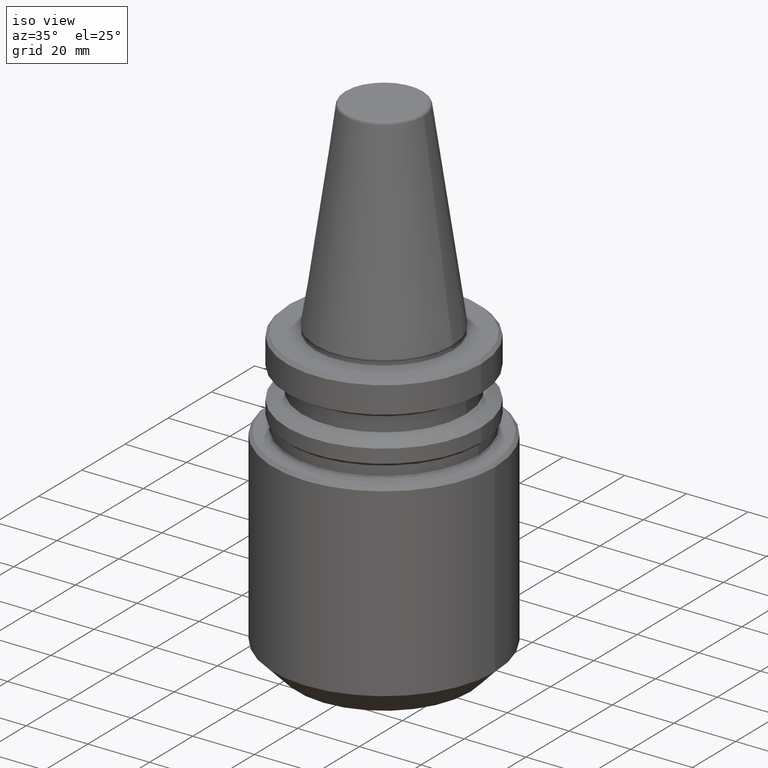
[diagram: clean part render]
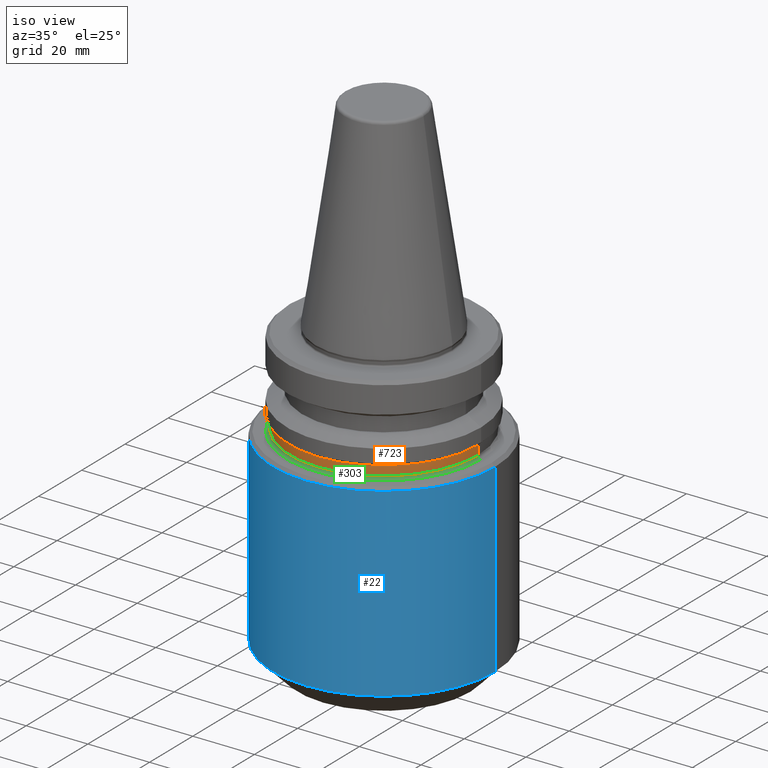
[diagram: same view with three faces highlighted in distinct colors, each labeled with its STEP entity id]
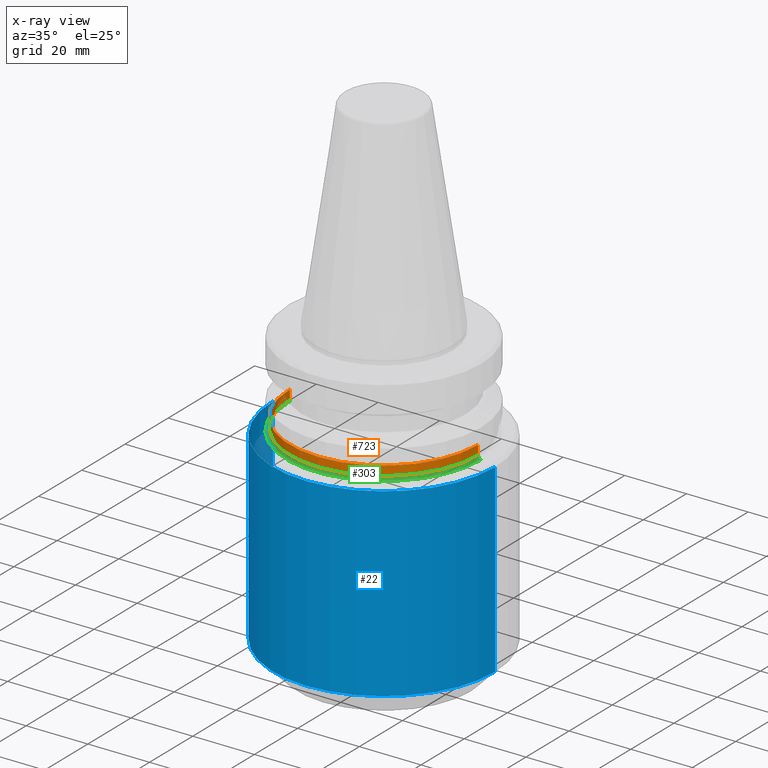
[diagram: x-ray of the same camera — body ghosted, the three highlighted faces saturated]
A machine part, iso view with three faces highlighted in distinct colors.
The next image is the same camera in x-ray (body ghosted, the three faces saturated) — at least one of them is partly hidden behind the body in this view.
Their STEP definitions:

[orange] entity #723 — the highlighted cylindrical surface (partial cylindrical patch) has radius 30.5 mm, axis along (-0, -0, 1).
#21 = CIRCLE ( 'NONE', #330, 30.50000000000024900 ) ;
#33 = CIRCLE ( 'NONE', #342, 30.50000000000019200 ) ;
#83 = DIRECTION ( 'NONE',  ( 1.000000000000000000, 0.0000000000000000000, 0.0000000000000000000 ) ) ;
#89 = CARTESIAN_POINT ( 'NONE',  ( 30.50000000000024900, 0.0000000000000000000, -30.00000000000023400 ) ) ;
#92 = EDGE_CURVE ( 'NONE', #1136, #1078, #33, .T. ) ;
#93 = DIRECTION ( 'NONE',  ( -0.0000000000000000000, -0.0000000000000000000, 1.000000000000000000 ) ) ;
#213 = CARTESIAN_POINT ( 'NONE',  ( -30.50000000000022000, 3.735172737399454400E-015, 121.7509167751276400 ) ) ;
#259 = CARTESIAN_POINT ( 'NONE',  ( 0.0000000000000000000, 0.0000000000000000000, -26.99999999999978700 ) ) ;
#271 = CARTESIAN_POINT ( 'NONE',  ( 0.0000000000000000000, 0.0000000000000000000, 121.7509167751276400 ) ) ;
#274 = ORIENTED_EDGE ( 'NONE', *, *, #835, .T. ) ;
#330 = AXIS2_PLACEMENT_3D ( 'NONE', #1008, #468, #1098 ) ;
#342 = AXIS2_PLACEMENT_3D ( 'NONE', #259, #873, #83 ) ;
#381 = CARTESIAN_POINT ( 'NONE',  ( -30.50000000000019200, 3.735172737399452800E-015, -26.99999999999978700 ) ) ;
#391 = VECTOR ( 'NONE', #696, 1000.000000000000000 ) ;
#401 = ORIENTED_EDGE ( 'NONE', *, *, #876, .F. ) ;
#412 = ORIENTED_EDGE ( 'NONE', *, *, #92, .F. ) ;
#468 = DIRECTION ( 'NONE',  ( -0.0000000000000000000, -0.0000000000000000000, 1.000000000000000000 ) ) ;
#613 = VECTOR ( 'NONE', #826, 1000.000000000000000 ) ;
#617 = CARTESIAN_POINT ( 'NONE',  ( 30.50000000000022000, 0.0000000000000000000, 121.7509167751276400 ) ) ;
#695 = CARTESIAN_POINT ( 'NONE',  ( -30.50000000000024900, 3.796405077356829000E-015, -30.00000000000023400 ) ) ;
#696 = DIRECTION ( 'NONE',  ( -0.0000000000000000000, -0.0000000000000000000, 1.000000000000000000 ) ) ;
#718 = VERTEX_POINT ( 'NONE', #695 ) ;
#723 = ADVANCED_FACE ( 'NONE', ( #1048 ), #1023, .T. ) ;
#803 = CARTESIAN_POINT ( 'NONE',  ( 30.50000000000019200, 0.0000000000000000000, -26.99999999999978700 ) ) ;
#826 = DIRECTION ( 'NONE',  ( -0.0000000000000000000, -0.0000000000000000000, 1.000000000000000000 ) ) ;
#835 = EDGE_CURVE ( 'NONE', #718, #968, #21, .T. ) ;
#841 = EDGE_LOOP ( 'NONE', ( #401, #274, #1016, #412 ) ) ;
#852 = LINE ( 'NONE', #213, #613 ) ;
#873 = DIRECTION ( 'NONE',  ( -0.0000000000000000000, -0.0000000000000000000, 1.000000000000000000 ) ) ;
#876 = EDGE_CURVE ( 'NONE', #718, #1136, #852, .T. ) ;
#968 = VERTEX_POINT ( 'NONE', #89 ) ;
#969 = LINE ( 'NONE', #617, #391 ) ;
#979 = EDGE_CURVE ( 'NONE', #968, #1078, #969, .T. ) ;
#1008 = CARTESIAN_POINT ( 'NONE',  ( 0.0000000000000000000, 0.0000000000000000000, -30.00000000000023400 ) ) ;
#1016 = ORIENTED_EDGE ( 'NONE', *, *, #979, .T. ) ;
#1023 = CYLINDRICAL_SURFACE ( 'NONE', #1140, 30.50000000000022000 ) ;
#1048 = FACE_OUTER_BOUND ( 'NONE', #841, .T. ) ;
#1068 = DIRECTION ( 'NONE',  ( 1.000000000000000000, 0.0000000000000000000, 0.0000000000000000000 ) ) ;
#1078 = VERTEX_POINT ( 'NONE', #803 ) ;
#1098 = DIRECTION ( 'NONE',  ( 1.000000000000000000, 0.0000000000000000000, 0.0000000000000000000 ) ) ;
#1136 = VERTEX_POINT ( 'NONE', #381 ) ;
#1140 = AXIS2_PLACEMENT_3D ( 'NONE', #271, #93, #1068 ) ;

[blue] entity #22 — the highlighted cylindrical surface (partial cylindrical patch) has radius 36 mm, axis along (-0, -0, 1).
#11 = DIRECTION ( 'NONE',  ( 1.000000000000000000, 0.0000000000000000000, 0.0000000000000000000 ) ) ;
#22 = ADVANCED_FACE ( 'NONE', ( #1050 ), #64, .T. ) ;
#42 = VERTEX_POINT ( 'NONE', #1006 ) ;
#46 = CARTESIAN_POINT ( 'NONE',  ( 0.0000000000000000000, 0.0000000000000000000, -32.00000000000012800 ) ) ;
#64 = CYLINDRICAL_SURFACE ( 'NONE', #507, 35.99999999999992200 ) ;
#109 = CARTESIAN_POINT ( 'NONE',  ( -35.99999999999992200, 4.408728476930462200E-015, -32.00000000000012800 ) ) ;
#114 = DIRECTION ( 'NONE',  ( -0.0000000000000000000, -0.0000000000000000000, 1.000000000000000000 ) ) ;
#134 = VERTEX_POINT ( 'NONE', #508 ) ;
#139 = DIRECTION ( 'NONE',  ( 1.000000000000000000, 0.0000000000000000000, 0.0000000000000000000 ) ) ;
#188 = VECTOR ( 'NONE', #812, 1000.000000000000000 ) ;
#196 = CARTESIAN_POINT ( 'NONE',  ( -35.99999999999992200, 4.408728476930462200E-015, 121.7509167751276400 ) ) ;
#201 = VECTOR ( 'NONE', #114, 1000.000000000000000 ) ;
#234 = CARTESIAN_POINT ( 'NONE',  ( 35.99999999999992200, 0.0000000000000000000, 121.7509167751276400 ) ) ;
#284 = CIRCLE ( 'NONE', #819, 35.99999999999992200 ) ;
#299 = EDGE_CURVE ( 'NONE', #792, #42, #284, .T. ) ;
#310 = ORIENTED_EDGE ( 'NONE', *, *, #746, .T. ) ;
#316 = DIRECTION ( 'NONE',  ( -0.0000000000000000000, -0.0000000000000000000, 1.000000000000000000 ) ) ;
#377 = EDGE_CURVE ( 'NONE', #134, #42, #430, .T. ) ;
#402 = AXIS2_PLACEMENT_3D ( 'NONE', #1075, #536, #11 ) ;
#403 = VERTEX_POINT ( 'NONE', #556 ) ;
#430 = LINE ( 'NONE', #234, #201 ) ;
#443 = LINE ( 'NONE', #196, #188 ) ;
#507 = AXIS2_PLACEMENT_3D ( 'NONE', #730, #316, #1014 ) ;
#508 = CARTESIAN_POINT ( 'NONE',  ( 35.99999999999992200, 0.0000000000000000000, -91.99999999999990100 ) ) ;
#515 = ORIENTED_EDGE ( 'NONE', *, *, #1086, .F. ) ;
#536 = DIRECTION ( 'NONE',  ( -0.0000000000000000000, -0.0000000000000000000, 1.000000000000000000 ) ) ;
#556 = CARTESIAN_POINT ( 'NONE',  ( -35.99999999999992200, 4.408728476930462200E-015, -91.99999999999990100 ) ) ;
#627 = ORIENTED_EDGE ( 'NONE', *, *, #299, .F. ) ;
#663 = DIRECTION ( 'NONE',  ( -0.0000000000000000000, -0.0000000000000000000, 1.000000000000000000 ) ) ;
#693 = ORIENTED_EDGE ( 'NONE', *, *, #377, .T. ) ;
#730 = CARTESIAN_POINT ( 'NONE',  ( 0.0000000000000000000, 0.0000000000000000000, 121.7509167751276400 ) ) ;
#746 = EDGE_CURVE ( 'NONE', #403, #134, #806, .T. ) ;
#792 = VERTEX_POINT ( 'NONE', #109 ) ;
#806 = CIRCLE ( 'NONE', #402, 35.99999999999992200 ) ;
#812 = DIRECTION ( 'NONE',  ( -0.0000000000000000000, -0.0000000000000000000, 1.000000000000000000 ) ) ;
#819 = AXIS2_PLACEMENT_3D ( 'NONE', #46, #663, #139 ) ;
#958 = EDGE_LOOP ( 'NONE', ( #515, #310, #693, #627 ) ) ;
#1006 = CARTESIAN_POINT ( 'NONE',  ( 35.99999999999992200, 0.0000000000000000000, -32.00000000000012800 ) ) ;
#1014 = DIRECTION ( 'NONE',  ( 1.000000000000000000, 0.0000000000000000000, 0.0000000000000000000 ) ) ;
#1050 = FACE_OUTER_BOUND ( 'NONE', #958, .T. ) ;
#1075 = CARTESIAN_POINT ( 'NONE',  ( 0.0000000000000000000, 0.0000000000000000000, -91.99999999999990100 ) ) ;
#1086 = EDGE_CURVE ( 'NONE', #403, #792, #443, .T. ) ;

[green] entity #303 — the highlighted toroidal blend (fillet) surface has major radius 31.5 mm and minor (blend) radius 1 mm.
#21 = CIRCLE ( 'NONE', #330, 30.50000000000024900 ) ;
#77 = FACE_OUTER_BOUND ( 'NONE', #593, .T. ) ;
#89 = CARTESIAN_POINT ( 'NONE',  ( 30.50000000000024900, 0.0000000000000000000, -30.00000000000023400 ) ) ;
#129 = EDGE_CURVE ( 'NONE', #968, #948, #650, .T. ) ;
#179 = CARTESIAN_POINT ( 'NONE',  ( -31.50000000000030600, 3.857637417314200600E-015, -31.00000000000027000 ) ) ;
#229 = CARTESIAN_POINT ( 'NONE',  ( 0.0000000000000000000, 0.0000000000000000000, -30.00000000000024900 ) ) ;
#251 = DIRECTION ( 'NONE',  ( 0.0000000000000000000, -1.000000000000000000, 0.0000000000000000000 ) ) ;
#288 = CARTESIAN_POINT ( 'NONE',  ( 0.0000000000000000000, 0.0000000000000000000, -31.00000000000023400 ) ) ;
#303 = ADVANCED_FACE ( 'NONE', ( #77 ), #747, .F. ) ;
#309 = ORIENTED_EDGE ( 'NONE', *, *, #129, .F. ) ;
#330 = AXIS2_PLACEMENT_3D ( 'NONE', #1008, #468, #1098 ) ;
#365 = CARTESIAN_POINT ( 'NONE',  ( -31.50000000000030600, 3.857637417314200600E-015, -30.00000000000024900 ) ) ;
#407 = CIRCLE ( 'NONE', #576, 1.000000000000056400 ) ;
#432 = EDGE_CURVE ( 'NONE', #718, #683, #407, .T. ) ;
#437 = DIRECTION ( 'NONE',  ( -1.000000000000000000, 1.224646799147350700E-016, 0.0000000000000000000 ) ) ;
#468 = DIRECTION ( 'NONE',  ( -0.0000000000000000000, -0.0000000000000000000, 1.000000000000000000 ) ) ;
#480 = DIRECTION ( 'NONE',  ( -0.0000000000000000000, -0.0000000000000000000, 1.000000000000000000 ) ) ;
#481 = AXIS2_PLACEMENT_3D ( 'NONE', #288, #1064, #524 ) ;
#524 = DIRECTION ( 'NONE',  ( 1.000000000000000000, 0.0000000000000000000, 0.0000000000000000000 ) ) ;
#527 = CIRCLE ( 'NONE', #481, 31.50000000000030600 ) ;
#569 = CARTESIAN_POINT ( 'NONE',  ( 31.50000000000030600, 0.0000000000000000000, -31.00000000000027000 ) ) ;
#576 = AXIS2_PLACEMENT_3D ( 'NONE', #365, #974, #437 ) ;
#593 = EDGE_LOOP ( 'NONE', ( #1105, #1049, #659, #309 ) ) ;
#650 = CIRCLE ( 'NONE', #890, 1.000000000000056400 ) ;
#659 = ORIENTED_EDGE ( 'NONE', *, *, #949, .T. ) ;
#683 = VERTEX_POINT ( 'NONE', #179 ) ;
#695 = CARTESIAN_POINT ( 'NONE',  ( -30.50000000000024900, 3.796405077356829000E-015, -30.00000000000023400 ) ) ;
#718 = VERTEX_POINT ( 'NONE', #695 ) ;
#747 = TOROIDAL_SURFACE ( 'NONE', #862, 31.50000000000030600, 1.000000000000056400 ) ;
#778 = CARTESIAN_POINT ( 'NONE',  ( 31.50000000000030600, 0.0000000000000000000, -30.00000000000024900 ) ) ;
#835 = EDGE_CURVE ( 'NONE', #718, #968, #21, .T. ) ;
#862 = AXIS2_PLACEMENT_3D ( 'NONE', #229, #480, #929 ) ;
#869 = DIRECTION ( 'NONE',  ( 0.0000000000000000000, 0.0000000000000000000, -1.000000000000000000 ) ) ;
#890 = AXIS2_PLACEMENT_3D ( 'NONE', #778, #251, #869 ) ;
#929 = DIRECTION ( 'NONE',  ( 1.000000000000000000, 0.0000000000000000000, 0.0000000000000000000 ) ) ;
#948 = VERTEX_POINT ( 'NONE', #569 ) ;
#949 = EDGE_CURVE ( 'NONE', #683, #948, #527, .T. ) ;
#968 = VERTEX_POINT ( 'NONE', #89 ) ;
#974 = DIRECTION ( 'NONE',  ( 1.224646799147353200E-016, 1.000000000000000000, 0.0000000000000000000 ) ) ;
#1008 = CARTESIAN_POINT ( 'NONE',  ( 0.0000000000000000000, 0.0000000000000000000, -30.00000000000023400 ) ) ;
#1049 = ORIENTED_EDGE ( 'NONE', *, *, #432, .T. ) ;
#1064 = DIRECTION ( 'NONE',  ( -0.0000000000000000000, -0.0000000000000000000, 1.000000000000000000 ) ) ;
#1098 = DIRECTION ( 'NONE',  ( 1.000000000000000000, 0.0000000000000000000, 0.0000000000000000000 ) ) ;
#1105 = ORIENTED_EDGE ( 'NONE', *, *, #835, .F. ) ;